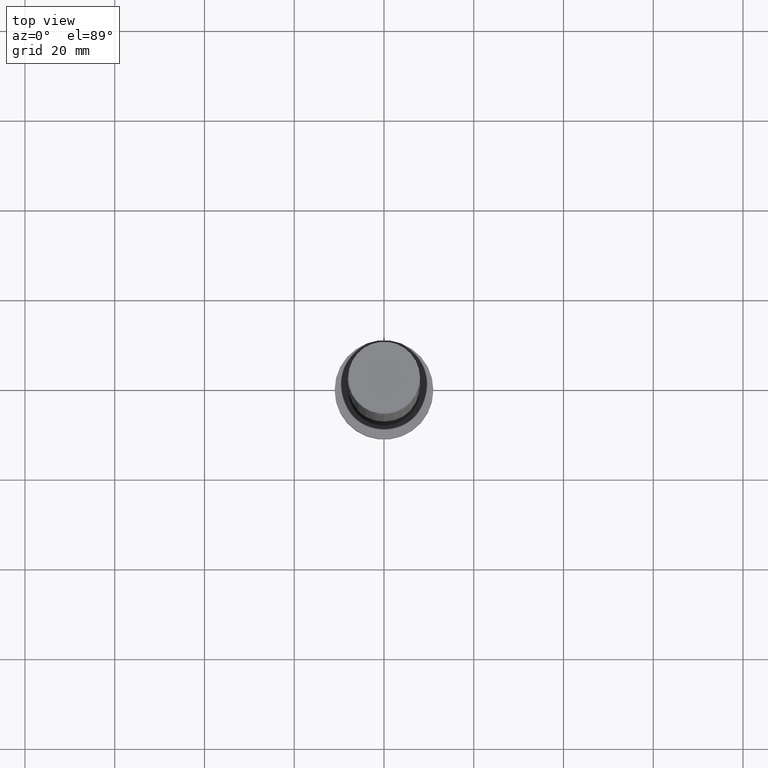
[diagram: clean part render]
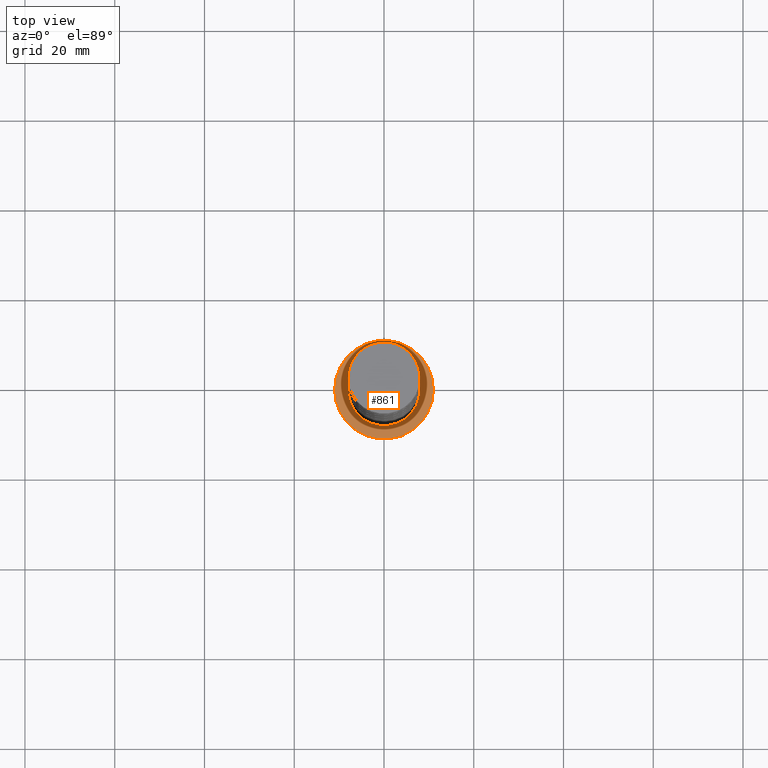
[diagram: same view with one face highlighted and labeled with its STEP entity id]
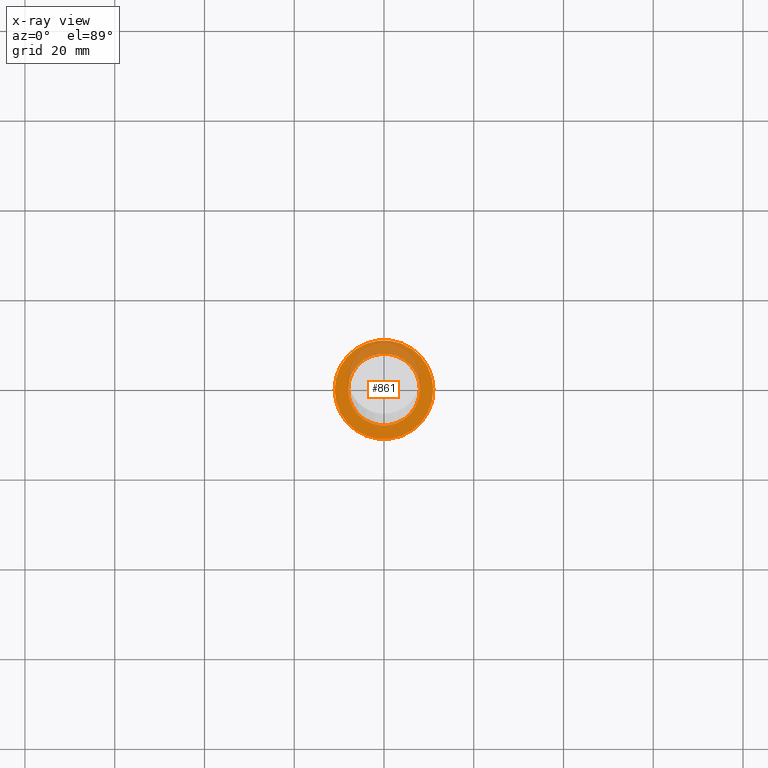
[diagram: x-ray of the same camera — body ghosted, the highlighted face saturated]
A machine part, top view. The second image highlights one B-rep face of the part: STEP entity #861.
The next image is the same camera in x-ray: the body ghosted, the highlighted face saturated — about 24% of this face is hidden behind the body in this view.
In plain terms, the highlighted planar face has unit normal (0, 0, 1).
Its self-contained STEP definition (entity closure, byte-faithful):
#42 = CARTESIAN_POINT ( 'NONE',  ( -11.00000000000000000, 0.000000000000000000, 7.000000000000000000 ) ) ;
#90 = VERTEX_POINT ( 'NONE', #42 ) ;
#116 = CARTESIAN_POINT ( 'NONE',  ( 8.000000000000000000, 9.797174393178825657E-16, 7.000000000000000000 ) ) ;
#120 = DIRECTION ( 'NONE',  ( 0.000000000000000000, 0.000000000000000000, 1.000000000000000000 ) ) ;
#142 = EDGE_CURVE ( 'NONE', #279, #280, #705, .T. ) ;
#171 = FACE_BOUND ( 'NONE', #1350, .T. ) ;
#189 = AXIS2_PLACEMENT_3D ( 'NONE', #1595, #1467, #1482 ) ;
#241 = DIRECTION ( 'NONE',  ( 0.000000000000000000, 0.000000000000000000, 1.000000000000000000 ) ) ;
#279 = VERTEX_POINT ( 'NONE', #116 ) ;
#280 = VERTEX_POINT ( 'NONE', #1018 ) ;
#317 = EDGE_CURVE ( 'NONE', #90, #1153, #730, .T. ) ;
#328 = ORIENTED_EDGE ( 'NONE', *, *, #1389, .F. ) ;
#376 = AXIS2_PLACEMENT_3D ( 'NONE', #1085, #1592, #572 ) ;
#455 = CIRCLE ( 'NONE', #648, 8.000000000000000000 ) ;
#457 = EDGE_LOOP ( 'NONE', ( #667, #1652 ) ) ;
#572 = DIRECTION ( 'NONE',  ( 1.000000000000000000, 0.000000000000000000, -0.000000000000000000 ) ) ;
#579 = FACE_OUTER_BOUND ( 'NONE', #457, .T. ) ;
#626 = AXIS2_PLACEMENT_3D ( 'NONE', #1399, #241, #864 ) ;
#648 = AXIS2_PLACEMENT_3D ( 'NONE', #1286, #120, #791 ) ;
#667 = ORIENTED_EDGE ( 'NONE', *, *, #317, .T. ) ;
#705 = CIRCLE ( 'NONE', #189, 8.000000000000000000 ) ;
#730 = CIRCLE ( 'NONE', #626, 11.00000000000000000 ) ;
#791 = DIRECTION ( 'NONE',  ( 1.000000000000000000, 0.000000000000000000, 0.000000000000000000 ) ) ;
#861 = ADVANCED_FACE ( 'NONE', ( #171, #579 ), #1471, .T. ) ;
#864 = DIRECTION ( 'NONE',  ( 1.000000000000000000, 0.000000000000000000, 0.000000000000000000 ) ) ;
#878 = CARTESIAN_POINT ( 'NONE',  ( 11.00000000000000000, 1.347111479062088405E-15, 7.000000000000000000 ) ) ;
#918 = DIRECTION ( 'NONE',  ( 1.000000000000000000, 0.000000000000000000, 0.000000000000000000 ) ) ;
#990 = ORIENTED_EDGE ( 'NONE', *, *, #142, .F. ) ;
#1018 = CARTESIAN_POINT ( 'NONE',  ( -8.000000000000000000, 0.000000000000000000, 7.000000000000000000 ) ) ;
#1051 = AXIS2_PLACEMENT_3D ( 'NONE', #1654, #1304, #918 ) ;
#1085 = CARTESIAN_POINT ( 'NONE',  ( 0.000000000000000000, 0.000000000000000000, 7.000000000000000000 ) ) ;
#1153 = VERTEX_POINT ( 'NONE', #878 ) ;
#1286 = CARTESIAN_POINT ( 'NONE',  ( 0.000000000000000000, 0.000000000000000000, 7.000000000000000000 ) ) ;
#1304 = DIRECTION ( 'NONE',  ( 0.000000000000000000, 0.000000000000000000, 1.000000000000000000 ) ) ;
#1350 = EDGE_LOOP ( 'NONE', ( #328, #990 ) ) ;
#1389 = EDGE_CURVE ( 'NONE', #280, #279, #455, .T. ) ;
#1399 = CARTESIAN_POINT ( 'NONE',  ( 0.000000000000000000, 0.000000000000000000, 7.000000000000000000 ) ) ;
#1402 = CIRCLE ( 'NONE', #1051, 11.00000000000000000 ) ;
#1410 = EDGE_CURVE ( 'NONE', #1153, #90, #1402, .T. ) ;
#1467 = DIRECTION ( 'NONE',  ( 0.000000000000000000, 0.000000000000000000, 1.000000000000000000 ) ) ;
#1471 = PLANE ( 'NONE',  #376 ) ;
#1482 = DIRECTION ( 'NONE',  ( 1.000000000000000000, 0.000000000000000000, 0.000000000000000000 ) ) ;
#1592 = DIRECTION ( 'NONE',  ( 0.000000000000000000, 0.000000000000000000, 1.000000000000000000 ) ) ;
#1595 = CARTESIAN_POINT ( 'NONE',  ( 0.000000000000000000, 0.000000000000000000, 7.000000000000000000 ) ) ;
#1652 = ORIENTED_EDGE ( 'NONE', *, *, #1410, .T. ) ;
#1654 = CARTESIAN_POINT ( 'NONE',  ( 0.000000000000000000, 0.000000000000000000, 7.000000000000000000 ) ) ;